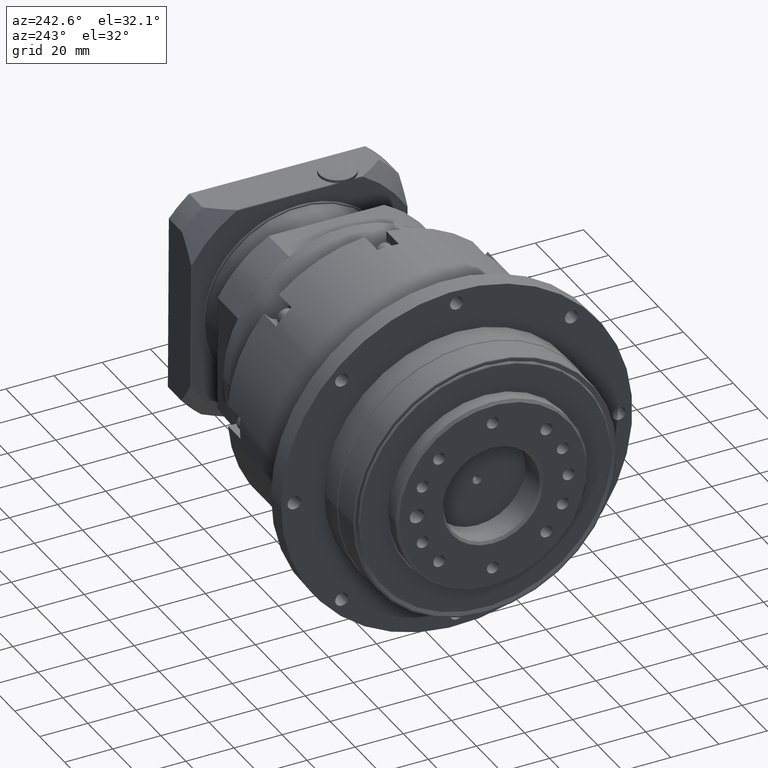
[diagram: clean part render]
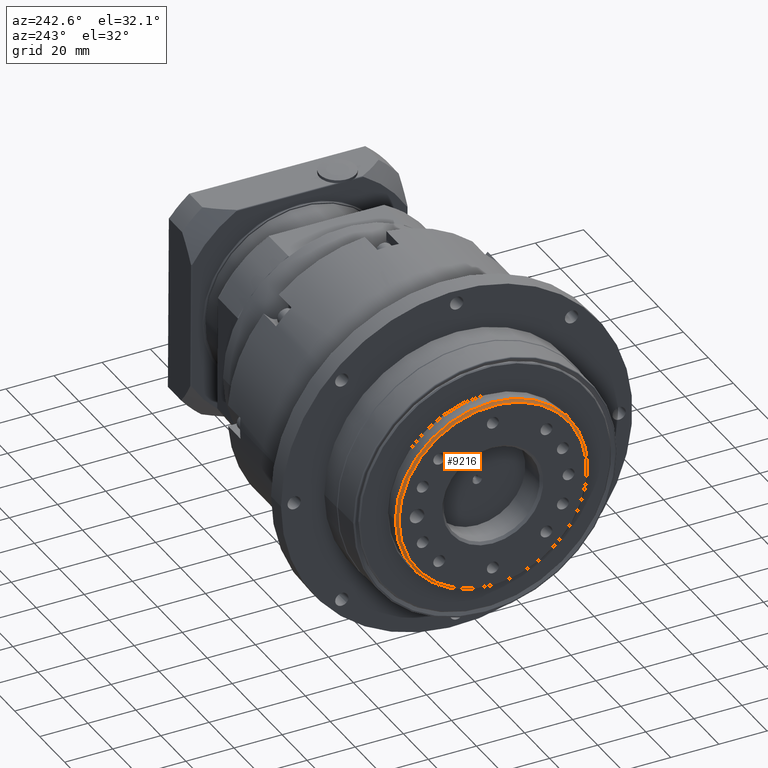
[diagram: same view with one face highlighted and labeled with its STEP entity id]
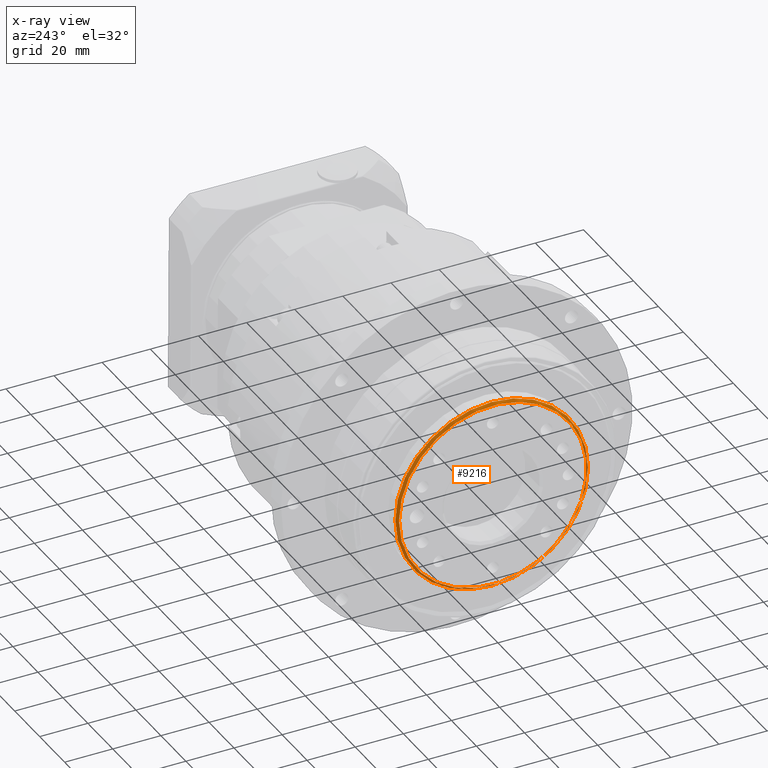
[diagram: x-ray of the same camera — body ghosted, the highlighted face saturated]
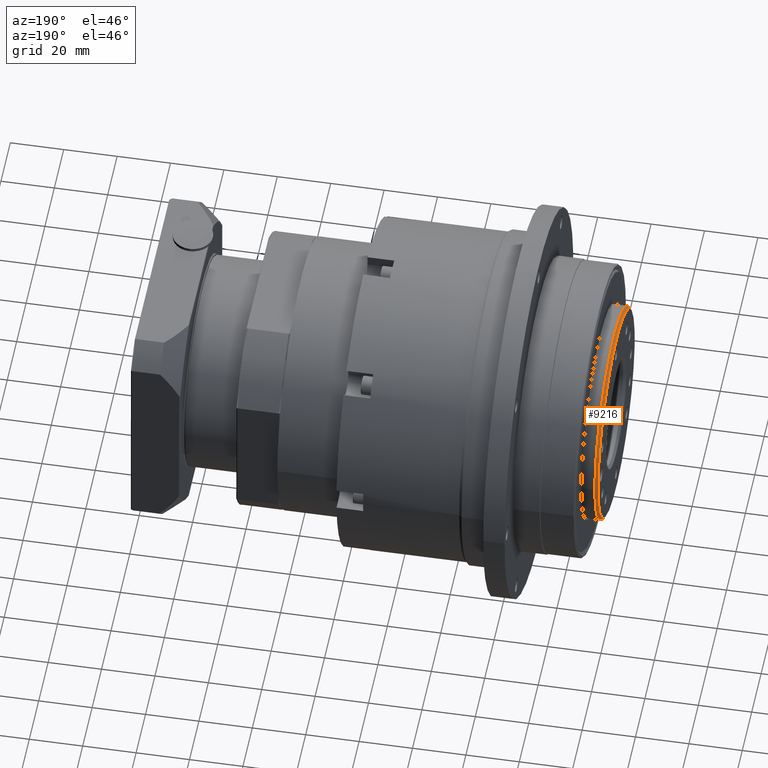
[diagram: same view with one face highlighted and labeled with its STEP entity id]
A machine part, auxiliary view. The second image highlights one B-rep face of the part: STEP entity #9216.
The next image is the same camera in x-ray: the body ghosted, the highlighted face saturated — about 0% of this face is hidden behind the body in this view.
A second angle (auxiliary view) of the same face is appended — the face is thin or edge-on in the first view.
In plain terms, the highlighted conical surface has half-angle 45 deg.
Its self-contained STEP definition (entity closure, byte-faithful):
#366=CONICAL_SURFACE('',#10253,39.5,45.);
#1783=FACE_BOUND('',#3176,.T.);
#2303=FACE_OUTER_BOUND('',#3175,.T.);
#3175=EDGE_LOOP('',(#7429));
#3176=EDGE_LOOP('',(#7430));
#3867=CIRCLE('',#10250,40.);
#3868=CIRCLE('',#10252,39.);
#4577=VERTEX_POINT('',#15771);
#4578=VERTEX_POINT('',#15774);
#5594=EDGE_CURVE('',#4577,#4577,#3867,.T.);
#5595=EDGE_CURVE('',#4578,#4578,#3868,.T.);
#7429=ORIENTED_EDGE('',*,*,#5595,.T.);
#7430=ORIENTED_EDGE('',*,*,#5594,.T.);
#9216=ADVANCED_FACE('',(#2303,#1783),#366,.T.);
#10250=AXIS2_PLACEMENT_3D('',#15772,#12423,#12424);
#10252=AXIS2_PLACEMENT_3D('',#15775,#12427,#12428);
#10253=AXIS2_PLACEMENT_3D('',#15776,#12429,#12430);
#12423=DIRECTION('center_axis',(-1.,-4.99600361081323E-16,-1.3140843750834E-15));
#12424=DIRECTION('ref_axis',(4.99600361070799E-16,-1.,8.00804224093589E-12));
#12427=DIRECTION('center_axis',(1.,4.99600361081323E-16,1.3140843750834E-15));
#12428=DIRECTION('ref_axis',(4.99600361070799E-16,-1.,8.00804224093589E-12));
#12429=DIRECTION('center_axis',(1.,4.99600361081323E-16,1.3140843750834E-15));
#12430=DIRECTION('ref_axis',(4.99600361070799E-16,-1.,8.00804224093589E-12));
#15771=CARTESIAN_POINT('',(-116.137742835657,90.9743906593734,19.267053438972));
#15772=CARTESIAN_POINT('Origin',(-116.137742835657,50.9743906593734,19.2670534392923));
#15774=CARTESIAN_POINT('',(-117.137742835657,89.9743906593734,19.26705343898));
#15775=CARTESIAN_POINT('Origin',(-117.137742835657,50.9743906593734,19.2670534392923));
#15776=CARTESIAN_POINT('Origin',(-116.637742835657,50.9743906593734,19.2670534392923));